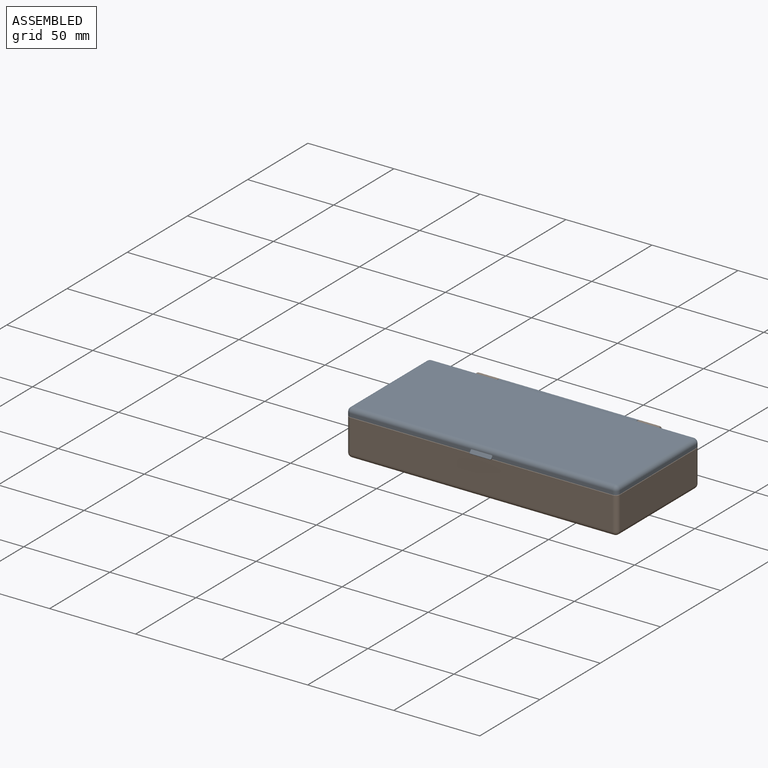
[diagram: assembled view]
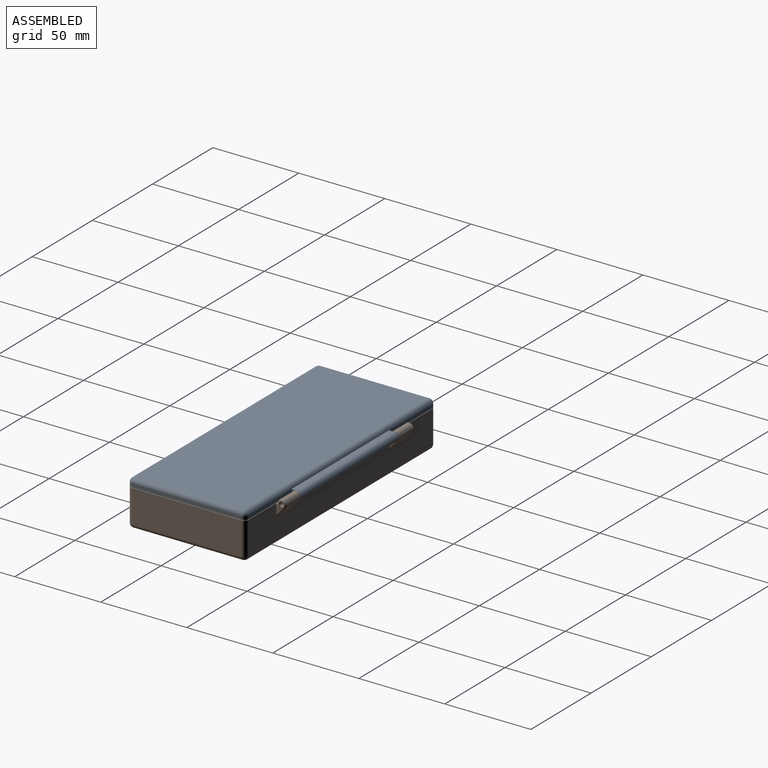
[diagram: assembled view, second angle]
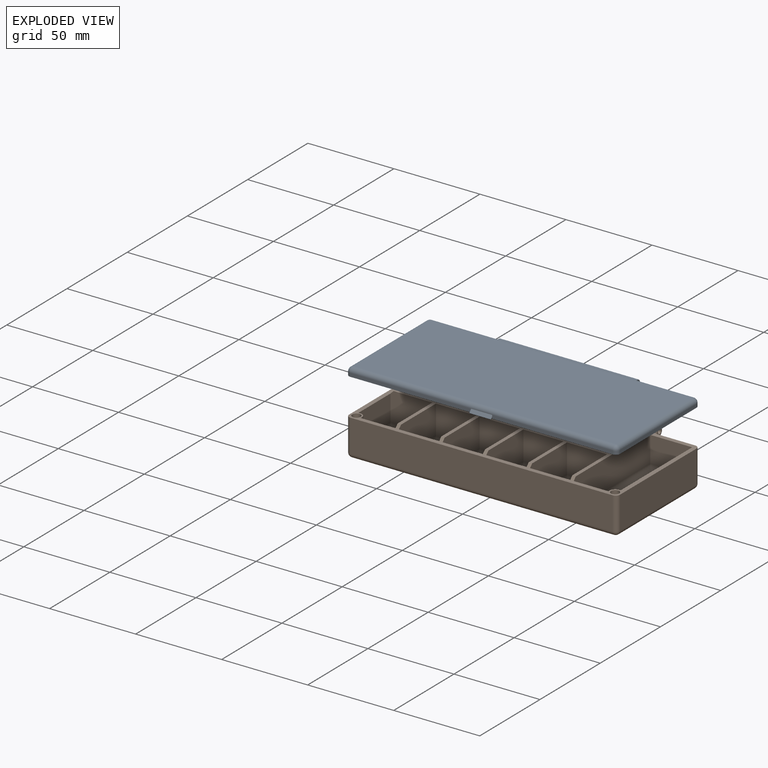
[diagram: exploded view]
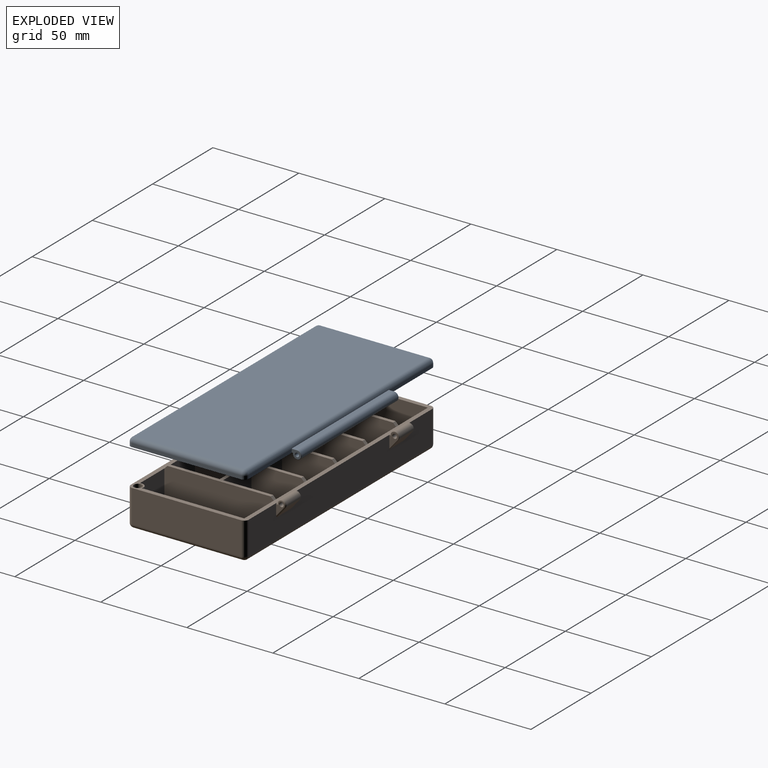
[diagram: exploded view, second angle]
ASSEMBLY  parts=2 mates=2
PART A: 65 faces, bbox 157.7x76.3x7.8 mm
  f0: plane 70.61x2.29mm, normal (0,1,0), area 142.1mm2, adj f9,f14,f15,f57,f59,f61
  f1: plane 153.62x64.72mm, normal (0,0,1), area 9898.3mm2, adj f21,f22,f23,f24,f25,f26,f49,f50
  f2: plane 36.07x2.03mm, normal (0,-1,0), area 72.8mm2, adj f3,f9,f20,f27,f36,f40
  f3: cylinder r=2.54mm len=152.4mm, axis (1,0,0), area 587.6mm2, adj f2,f5,f8,f16,f19,f30,f32,f40
  f4: plane 63.5x2.03mm, normal (-1,0,0), area 129mm2, adj f9,f15,f18,f20
  f5: plane 36.07x2.03mm, normal (0,-1,0), area 72.8mm2, adj f3,f9,f12,f28,f32,f33
  f6: plane 63.5x2.03mm, normal (1,0,0), area 129mm2, adj f9,f10,f12,f13
  f7: plane 70.61x2.29mm, normal (0,1,0), area 141.8mm2, adj f9,f10,f14,f56,f62,f64
  f8: plane 152.4x63.5mm, normal (0,0,-1), area 9677.4mm2, adj f3,f13,f14,f18
  f9: plane 157.48x69.99mm, normal (0,0,1), area 636mm2, adj f0,f2,f4,f5,f6,f7,f10,f12
  f10: cylinder r=2.54mm len=2.54mm, axis (0,0,-1), area 8.1mm2, adj f6,f7,f9,f11
  f11: sphere r=2.54mm, area 6.5mm2, adj f10,f13,f14
  f12: cylinder r=2.54mm len=2.54mm, axis (0,0,1), area 8.1mm2, adj f5,f6,f9,f16
  f13: cylinder r=2.54mm len=63.5mm, axis (0,1,0), area 253.4mm2, adj f6,f8,f11,f16
  f14: cylinder r=2.54mm len=152.4mm, axis (-1,0,0), area 608mm2, adj f0,f7,f8,f11,f17,f55
  f15: cylinder r=2.54mm len=2.54mm, axis (0,0,1), area 8.1mm2, adj f0,f4,f9,f17
  f16: sphere r=2.54mm, area 10.1mm2, adj f3,f12,f13
  f17: sphere r=2.54mm, area 13.8mm2, adj f14,f15,f18
  f18: cylinder r=2.54mm len=63.5mm, axis (0,-1,0), area 253.4mm2, adj f4,f8,f17,f19
  f19: sphere r=2.54mm, area 10.1mm2, adj f3,f18,f20
  f20: cylinder r=2.54mm len=2.54mm, axis (0,0,-1), area 8.1mm2, adj f2,f4,f9,f19
  f21: plane 58.02x1.87mm, normal (-0.98,0,0.2), area 107.8mm2, adj f1,f22,f46,f50
  f22: cone r=3.05mm half-angle=11.3deg, axis (0,0,1), area 8.3mm2, adj f1,f21,f24,f44
  f23: plane 145.47x1.87mm, normal (0,-0.98,0.2), area 270.6mm2, adj f1,f45,f49,f50
  f24: plane 148.34x1.83mm, normal (0,0.98,0.2), area 276.5mm2, adj f1,f22,f25,f43
  f25: cone r=3.05mm half-angle=11.3deg, axis (0,0,1), area 8.3mm2, adj f1,f24,f26,f41
  f26: plane 58.02x1.87mm, normal (0.98,0,0.2), area 107.8mm2, adj f1,f25,f42,f49
  f27: plane 5.33x4.57mm, normal (-1,0,0), area 13.9mm2, adj f2,f36,f38,f39,f40,f48
  f28: plane 5.33x4.57mm, normal (1,0,0), area 13.9mm2, adj f5,f32,f33,f34,f35,f47
  f29: cylinder r=2.54mm len=80.26mm, axis (1,0,0), area 963mm2, adj f30,f34,f37,f39
  f30: plane 80.26x3.03mm, normal (0,0,-1), area 243.4mm2, adj f3,f29,f32,f40
  f31: cylinder r=1.02mm len=80.26mm, axis (1,0,0), area 512.4mm2, adj f47,f48
  f32: cylinder r=0.25mm len=3.03mm, axis (0,1,0), area 1.2mm2, adj f3,f5,f28,f30,f34
  f33: cylinder r=0.25mm len=0.25mm, axis (0,-1,0), area 0.1mm2, adj f5,f9,f28,f35
  f34: torus R=2.29mm, axis (1,0,0), area 4.6mm2, adj f28,f29,f32,f35
  f35: torus R=0.51mm, axis (1,0,0), area 0.2mm2, adj f28,f33,f34,f37
  f36: cylinder r=0.25mm len=0.25mm, axis (0,1,0), area 0.1mm2, adj f2,f9,f27,f38
  f37: cylinder r=0.25mm len=80.26mm, axis (1,0,0), area 32mm2, adj f9,f29,f35,f38
  f38: torus R=0.51mm, axis (1,0,0), area 0.2mm2, adj f27,f36,f37,f39
  f39: torus R=2.29mm, axis (1,0,0), area 4.6mm2, adj f27,f29,f38,f40
  f40: cylinder r=0.25mm len=3.03mm, axis (0,-1,0), area 1.2mm2, adj f2,f3,f27,f30,f39
  f41: torus R=3.26mm, axis (0,0,1), area 1.7mm2, adj f9,f25,f42,f43
  f42: cylinder r=0.25mm len=58.2mm, axis (0,-1,0), area 20.3mm2, adj f9,f26,f41,f49
  f43: cylinder r=0.25mm len=148.34mm, axis (1,0,0), area 51.7mm2, adj f9,f24,f41,f44
  f44: torus R=3.26mm, axis (0,0,1), area 1.7mm2, adj f9,f22,f43,f46
  f45: cylinder r=0.25mm len=145.87mm, axis (1,0,0), area 50.8mm2, adj f9,f23,f49,f50
  f46: cylinder r=0.25mm len=58.2mm, axis (0,-1,0), area 20.3mm2, adj f9,f21,f44,f50
  f47: torus R=1.27mm, axis (1,0,0), area 2.8mm2, adj f28,f31
  f48: torus R=1.27mm, axis (1,0,0), area 2.8mm2, adj f27,f31
  f49: cylinder r=3.17mm len=5.42mm, axis (0,0,1), area 18.1mm2, adj f1,f9,f23,f26,f42,f45
  f50: cylinder r=3.17mm len=5.42mm, axis (0,0,1), area 18.1mm2, adj f1,f9,f21,f23,f45,f46
  f51: cylinder r=2.41mm len=4.83mm, axis (0,0,1), area 48.5mm2, adj f9,f52
  f52: plane 4.83x4.83mm, normal (0,0,1), area 18.3mm2, adj f51
  f53: cylinder r=2.41mm len=4.83mm, axis (0,0,1), area 48.5mm2, adj f9,f54
  f54: plane 4.83x4.83mm, normal (0,0,1), area 18.3mm2, adj f53
  f55: plane 11.69x1.62mm, normal (0,0.77,-0.64), area 24.6mm2, adj f14,f58,f61,f64
  f56: plane 0.73x0.61mm, normal (1,0,0), area 0.2mm2, adj f7,f62,f64
  f57: plane 0.73x0.61mm, normal (-1,0,0), area 0.2mm2, adj f0,f59,f61
  f58: cylinder r=0.25mm len=11.68mm, axis (1,0,0), area 6.7mm2, adj f9,f55,f60,f63
  f59: cylinder r=0.51mm len=1.16mm, axis (0,1,0), area 0.7mm2, adj f0,f9,f57,f60
  f60: bspline ~1.09x0.72mm, area 0.2mm2, adj f58,f59,f61
  f61: cylinder r=0.51mm len=1.94mm, axis (0,0.64,0.77), area 1.2mm2, adj f0,f55,f57,f60
  f62: cylinder r=0.51mm len=1.16mm, axis (0,-1,0), area 0.7mm2, adj f7,f9,f56,f63
  f63: bspline ~1.09x0.56mm, area 0.2mm2, adj f58,f62,f64
  f64: cylinder r=0.51mm len=1.94mm, axis (0,-0.64,-0.77), area 1.2mm2, adj f7,f55,f56,f63
PART B: 161 faces, bbox 157.5x74.4x24.3 mm
  f0: plane 157.48x69.09mm, normal (0,0,1), area 1122.9mm2, adj f1,f2,f5,f6,f7,f8,f12,f13
  f1: cylinder r=2.54mm len=11.68mm, axis (1,0,0), area 114.8mm2, adj f0,f3,f134,f141
  f2: cylinder r=2.54mm len=11.68mm, axis (1,0,0), area 114.8mm2, adj f0,f4,f128,f138
  f3: plane 11.68x5.89mm, normal (0,0.77,-0.64), area 89.9mm2, adj f1,f5,f133,f142
  f4: plane 11.68x5.89mm, normal (0,0.77,-0.64), area 89.9mm2, adj f2,f5,f129,f139
  f5: plane 152.4x19.05mm, normal (0,1,0), area 2711.3mm2, adj f0,f3,f4,f109,f110,f112,f113,f115
  f6: plane 63.5x19.05mm, normal (-1,0,0), area 1209.7mm2, adj f0,f120,f124,f126
  f7: plane 152.4x19.05mm, normal (0,-1,0), area 2903.2mm2, adj f0,f117,f123,f126
  f8: plane 63.5x19.05mm, normal (1,0,0), area 1209.7mm2, adj f0,f115,f117,f118
  f9: plane 152.4x63.5mm, normal (0,0,-1), area 9677.4mm2, adj f118,f119,f123,f124
  f10: plane 23.37x17.02mm, normal (0,-1,0), area 397.7mm2, adj f11,f53,f65,f149
  f11: plane 30.73x17.02mm, normal (-1,0,0), area 521.5mm2, adj f10,f12,f67,f149,f151
  f12: plane 23.37x15.24mm, normal (0,1,0), area 356.1mm2, adj f0,f11,f53,f68
  f13: plane 23.37x15.24mm, normal (0,-1,0), area 356.1mm2, adj f0,f14,f43,f70
  f14: plane 30.73x17.02mm, normal (-1,0,0), area 521.5mm2, adj f13,f15,f69,f149,f150
  f15: plane 23.37x17.02mm, normal (0,1,0), area 397.7mm2, adj f14,f43,f71,f149
  f16: plane 23.37x17.02mm, normal (0,-1,0), area 397.7mm2, adj f17,f44,f74,f149
  f17: plane 30.73x17.02mm, normal (-1,0,0), area 521.5mm2, adj f16,f18,f73,f149,f156
  f18: plane 23.37x15.24mm, normal (0,1,0), area 356.1mm2, adj f0,f17,f44,f75
  f19: plane 23.37x15.24mm, normal (0,-1,0), area 356.1mm2, adj f0,f20,f45,f78
  f20: plane 30.73x17.02mm, normal (-1,0,0), area 521.5mm2, adj f19,f21,f77,f149,f155
  f21: plane 23.37x17.02mm, normal (0,1,0), area 397.7mm2, adj f20,f45,f79,f149
  f22: plane 23.37x17.02mm, normal (0,-1,0), area 397.7mm2, adj f23,f46,f82,f149
  f23: plane 30.73x17.02mm, normal (-1,0,0), area 521.5mm2, adj f22,f24,f81,f149,f157
  f24: plane 23.37x15.24mm, normal (0,1,0), area 356.1mm2, adj f0,f23,f46,f83
  f25: plane 23.37x15.24mm, normal (0,-1,0), area 356.1mm2, adj f0,f26,f47,f86
  f26: plane 30.73x17.02mm, normal (-1,0,0), area 521.5mm2, adj f25,f27,f85,f149,f154
  f27: plane 23.37x17.02mm, normal (0,1,0), area 397.7mm2, adj f26,f47,f87,f149
  f28: plane 23.37x17.02mm, normal (0,-1,0), area 397.7mm2, adj f29,f48,f90,f149
  f29: plane 30.73x17.02mm, normal (-1,0,0), area 521.5mm2, adj f28,f30,f89,f149,f158
  f30: plane 23.37x15.24mm, normal (0,1,0), area 356.1mm2, adj f0,f29,f48,f91
  f31: plane 23.37x15.24mm, normal (0,-1,0), area 356.1mm2, adj f0,f32,f49,f94
  f32: plane 30.73x17.02mm, normal (-1,0,0), area 521.5mm2, adj f31,f33,f93,f149,f153
  f33: plane 23.37x17.02mm, normal (0,1,0), area 397.7mm2, adj f32,f49,f95,f149
  f34: plane 26.71x15.24mm, normal (1,0,0), area 407.1mm2, adj f0,f35,f98,f143
  f35: plane 24.38x17.02mm, normal (0,-1,0), area 413.4mm2, adj f34,f36,f97,f149,f160
  f36: plane 30.73x17.02mm, normal (-1,0,0), area 521.5mm2, adj f35,f50,f99,f149,f159
  f37: plane 24.38x15.24mm, normal (0,-1,0), area 371.6mm2, adj f0,f38,f51,f102
  f38: plane 30.73x17.02mm, normal (-1,0,0), area 521.5mm2, adj f37,f39,f101,f149,f152
  f39: plane 24.38x17.02mm, normal (0,1,0), area 413.4mm2, adj f38,f51,f103,f149,f160
  f40: plane 63.5x17.02mm, normal (1,0,0), area 1077.5mm2, adj f41,f52,f106,f149,f150,f151
  f41: plane 24.38x15.24mm, normal (0,-1,0), area 371.6mm2, adj f0,f40,f42,f105
  f42: plane 59.48x15.24mm, normal (-1,0,0), area 906.4mm2, adj f0,f41,f107,f144
  f43: plane 30.73x17.02mm, normal (1,0,0), area 521.5mm2, adj f13,f15,f72,f149,f155
  f44: plane 30.73x17.02mm, normal (1,0,0), area 521.5mm2, adj f16,f18,f76,f149,f157
  f45: plane 30.73x17.02mm, normal (1,0,0), area 521.5mm2, adj f19,f21,f80,f149,f154
  f46: plane 30.73x17.02mm, normal (1,0,0), area 521.5mm2, adj f22,f24,f84,f149,f158
  f47: plane 30.73x17.02mm, normal (1,0,0), area 521.5mm2, adj f25,f27,f88,f149,f153
  f48: plane 30.73x17.02mm, normal (1,0,0), area 521.5mm2, adj f28,f30,f92,f149,f159
  f49: plane 30.73x17.02mm, normal (1,0,0), area 521.5mm2, adj f31,f33,f96,f149,f152
  f50: plane 20.36x15.24mm, normal (0,1,0), area 310.3mm2, adj f0,f36,f100,f143
  f51: plane 30.73x15.24mm, normal (1,0,0), area 468.4mm2, adj f0,f37,f39,f104
  f52: plane 20.36x15.24mm, normal (0,1,0), area 310.3mm2, adj f0,f40,f108,f144
  f53: plane 30.73x17.02mm, normal (1,0,0), area 521.5mm2, adj f10,f12,f66,f149,f156
  f54: plane 23.11x15.75mm, normal (0,0,1), area 364mm2, adj f65,f66,f67,f68
  f55: plane 55.88x16.76mm, normal (0,0,1), area 936.8mm2, adj f105,f106,f107,f108
  f56: plane 23.11x16.76mm, normal (0,0,1), area 387.5mm2, adj f101,f102,f103,f104
  f57: plane 23.11x16.76mm, normal (0,0,1), area 387.5mm2, adj f97,f98,f99,f100
  f58: plane 23.11x15.75mm, normal (0,0,1), area 364mm2, adj f93,f94,f95,f96
  f59: plane 23.11x15.75mm, normal (0,0,1), area 364mm2, adj f89,f90,f91,f92
  f60: plane 23.11x15.75mm, normal (0,0,1), area 364mm2, adj f85,f86,f87,f88
  f61: plane 23.11x15.75mm, normal (0,0,1), area 364mm2, adj f81,f82,f83,f84
  f62: plane 23.11x15.75mm, normal (0,0,1), area 364mm2, adj f77,f78,f79,f80
  f63: plane 23.11x15.75mm, normal (0,0,1), area 364mm2, adj f73,f74,f75,f76
  f64: plane 23.11x15.75mm, normal (0,0,1), area 364mm2, adj f69,f70,f71,f72
  f65: cylinder r=3.81mm len=23.37mm, axis (1,0,0), area 123.3mm2, adj f10,f54,f66,f67
  f66: cylinder r=3.81mm len=30.73mm, axis (0,1,0), area 167.4mm2, adj f53,f54,f65,f68
  f67: cylinder r=3.81mm len=30.73mm, axis (0,-1,0), area 167.4mm2, adj f11,f54,f65,f68
  f68: cylinder r=3.81mm len=23.37mm, axis (-1,0,0), area 123.3mm2, adj f12,f54,f66,f67
  f69: cylinder r=3.81mm len=30.73mm, axis (0,-1,0), area 167.4mm2, adj f14,f64,f70,f71
  f70: cylinder r=3.81mm len=23.37mm, axis (1,0,0), area 123.3mm2, adj f13,f64,f69,f72
  f71: cylinder r=3.81mm len=23.37mm, axis (-1,0,0), area 123.3mm2, adj f15,f64,f69,f72
  f72: cylinder r=3.81mm len=30.73mm, axis (0,1,0), area 167.4mm2, adj f43,f64,f70,f71
  f73: cylinder r=3.81mm len=30.73mm, axis (0,-1,0), area 167.4mm2, adj f17,f63,f74,f75
  f74: cylinder r=3.81mm len=23.37mm, axis (1,0,0), area 123.3mm2, adj f16,f63,f73,f76
  f75: cylinder r=3.81mm len=23.37mm, axis (-1,0,0), area 123.3mm2, adj f18,f63,f73,f76
  f76: cylinder r=3.81mm len=30.73mm, axis (0,1,0), area 167.4mm2, adj f44,f63,f74,f75
  f77: cylinder r=3.81mm len=30.73mm, axis (0,-1,0), area 167.4mm2, adj f20,f62,f78,f79
  f78: cylinder r=3.81mm len=23.37mm, axis (1,0,0), area 123.3mm2, adj f19,f62,f77,f80
  f79: cylinder r=3.81mm len=23.37mm, axis (-1,0,0), area 123.3mm2, adj f21,f62,f77,f80
  f80: cylinder r=3.81mm len=30.73mm, axis (0,1,0), area 167.4mm2, adj f45,f62,f78,f79
  f81: cylinder r=3.81mm len=30.73mm, axis (0,-1,0), area 167.4mm2, adj f23,f61,f82,f83
  f82: cylinder r=3.81mm len=23.37mm, axis (1,0,0), area 123.3mm2, adj f22,f61,f81,f84
  f83: cylinder r=3.81mm len=23.37mm, axis (-1,0,0), area 123.3mm2, adj f24,f61,f81,f84
  f84: cylinder r=3.81mm len=30.73mm, axis (0,1,0), area 167.4mm2, adj f46,f61,f82,f83
  f85: cylinder r=3.81mm len=30.73mm, axis (0,-1,0), area 167.4mm2, adj f26,f60,f86,f87
  f86: cylinder r=3.81mm len=23.37mm, axis (1,0,0), area 123.3mm2, adj f25,f60,f85,f88
  f87: cylinder r=3.81mm len=23.37mm, axis (-1,0,0), area 123.3mm2, adj f27,f60,f85,f88
  f88: cylinder r=3.81mm len=30.73mm, axis (0,1,0), area 167.4mm2, adj f47,f60,f86,f87
  f89: cylinder r=3.81mm len=30.73mm, axis (0,-1,0), area 167.4mm2, adj f29,f59,f90,f91
  f90: cylinder r=3.81mm len=23.37mm, axis (1,0,0), area 123.3mm2, adj f28,f59,f89,f92
  f91: cylinder r=3.81mm len=23.37mm, axis (-1,0,0), area 123.3mm2, adj f30,f59,f89,f92
  f92: cylinder r=3.81mm len=30.73mm, axis (0,1,0), area 167.4mm2, adj f48,f59,f90,f91
  f93: cylinder r=3.81mm len=30.73mm, axis (0,-1,0), area 167.4mm2, adj f32,f58,f94,f95
  f94: cylinder r=3.81mm len=23.37mm, axis (1,0,0), area 123.3mm2, adj f31,f58,f93,f96
  f95: cylinder r=3.81mm len=23.37mm, axis (-1,0,0), area 123.3mm2, adj f33,f58,f93,f96
  f96: cylinder r=3.81mm len=30.73mm, axis (0,1,0), area 167.4mm2, adj f49,f58,f94,f95
  f97: cylinder r=3.81mm len=24.38mm, axis (1,0,0), area 129.4mm2, adj f35,f57,f98,f99
  f98: cylinder r=3.81mm len=27.47mm, axis (0,1,0), area 151.9mm2, adj f34,f57,f97,f100,f143
  f99: cylinder r=3.81mm len=30.73mm, axis (0,-1,0), area 167.4mm2, adj f36,f57,f97,f100
  f100: cylinder r=3.81mm len=21.12mm, axis (-1,0,0), area 113.9mm2, adj f50,f57,f98,f99,f143
  f101: cylinder r=3.81mm len=30.73mm, axis (0,-1,0), area 167.4mm2, adj f38,f56,f102,f103
  f102: cylinder r=3.81mm len=24.38mm, axis (1,0,0), area 129.4mm2, adj f37,f56,f101,f104
  f103: cylinder r=3.81mm len=24.38mm, axis (-1,0,0), area 129.4mm2, adj f39,f56,f101,f104
  f104: cylinder r=3.81mm len=30.73mm, axis (0,1,0), area 167.4mm2, adj f51,f56,f102,f103
  f105: cylinder r=3.81mm len=24.38mm, axis (1,0,0), area 129.4mm2, adj f41,f55,f106,f107
  f106: cylinder r=3.81mm len=63.5mm, axis (0,1,0), area 363.5mm2, adj f40,f55,f105,f108
  f107: cylinder r=3.81mm len=60.24mm, axis (0,-1,0), area 348mm2, adj f42,f55,f105,f108,f144
  f108: cylinder r=3.81mm len=21.12mm, axis (-1,0,0), area 113.9mm2, adj f52,f55,f106,f107,f144
  f109: plane 9.47x5.33mm, normal (-1,0,0), area 23.2mm2, adj f5,f127,f128,f129,f132
  f110: plane 9.47x5.33mm, normal (1,0,0), area 23.2mm2, adj f5,f133,f134,f135,f136
  f111: cylinder r=1.14mm len=12.19mm, axis (1,0,0), area 87.6mm2, adj f131,f132
  f112: plane 8.18x4.83mm, normal (1,0,0), area 14.8mm2, adj f5,f131,f137,f138,f139
  f113: plane 8.18x4.83mm, normal (-1,0,0), area 14.8mm2, adj f5,f130,f140,f141,f142
  f114: cylinder r=1.14mm len=12.19mm, axis (1,0,0), area 87.6mm2, adj f130,f136
  f115: cylinder r=2.54mm len=19.05mm, axis (0,0,-1), area 76mm2, adj f0,f5,f8,f116
  f116: sphere r=2.54mm, area 10.1mm2, adj f115,f118,f119
  f117: cylinder r=2.54mm len=19.05mm, axis (0,0,1), area 76mm2, adj f0,f7,f8,f121
  f118: cylinder r=2.54mm len=63.5mm, axis (0,1,0), area 253.4mm2, adj f8,f9,f116,f121
  f119: cylinder r=2.54mm len=152.4mm, axis (-1,0,0), area 608mm2, adj f5,f9,f116,f122
  f120: cylinder r=2.54mm len=19.05mm, axis (0,0,1), area 76mm2, adj f0,f5,f6,f122
  f121: sphere r=2.54mm, area 10.1mm2, adj f117,f118,f123
  f122: sphere r=2.54mm, area 10.1mm2, adj f119,f120,f124
  f123: cylinder r=2.54mm len=152.4mm, axis (1,0,0), area 608mm2, adj f7,f9,f121,f125
  f124: cylinder r=2.54mm len=63.5mm, axis (0,-1,0), area 253.4mm2, adj f6,f9,f122,f125
  f125: sphere r=2.54mm, area 10.1mm2, adj f123,f124,f126
  f126: cylinder r=2.54mm len=19.05mm, axis (0,0,-1), area 76mm2, adj f0,f6,f7,f125
  f127: cylinder r=0.25mm len=0.78mm, axis (0,-1,0), area 0.2mm2, adj f0,f5,f109,f128
  f128: torus R=2.29mm, axis (-1,0,0), area 3.8mm2, adj f2,f109,f127,f129
  f129: cylinder r=0.25mm len=6.06mm, axis (0,0.64,0.77), area 3mm2, adj f4,f5,f109,f128
  f130: torus R=1.4mm, axis (-1,0,0), area 3.1mm2, adj f113,f114
  f131: torus R=1.4mm, axis (-1,0,0), area 3.1mm2, adj f111,f112
  f132: torus R=1.4mm, axis (-1,0,0), area 3.1mm2, adj f109,f111
  f133: cylinder r=0.25mm len=6.06mm, axis (0,-0.64,-0.77), area 3mm2, adj f3,f5,f110,f134
  f134: torus R=2.29mm, axis (-1,0,0), area 3.8mm2, adj f1,f110,f133,f135
  f135: cylinder r=0.25mm len=0.78mm, axis (0,1,0), area 0.2mm2, adj f0,f5,f110,f134
  f136: torus R=1.4mm, axis (-1,0,0), area 3.1mm2, adj f110,f114
  f137: cylinder r=0.76mm len=1.44mm, axis (0,1,0), area 1mm2, adj f0,f5,f112,f138
  f138: torus R=1.78mm, axis (-1,0,0), area 10.8mm2, adj f2,f112,f137,f139
  f139: cylinder r=0.76mm len=6.39mm, axis (0,-0.64,-0.77), area 8.8mm2, adj f4,f5,f112,f138
  f140: cylinder r=0.76mm len=1.44mm, axis (0,-1,0), area 1mm2, adj f0,f5,f113,f141
  f141: torus R=1.78mm, axis (-1,0,0), area 10.8mm2, adj f1,f113,f140,f142
  f142: cylinder r=0.76mm len=6.39mm, axis (0,0.64,0.77), area 8.8mm2, adj f3,f5,f113,f141
  f143: cylinder r=3.17mm len=19.01mm, axis (0,0,1), area 128mm2, adj f0,f34,f50,f98,f100
  f144: cylinder r=3.17mm len=19.01mm, axis (0,0,1), area 128mm2, adj f0,f42,f52,f107,f108
  f145: cylinder r=2.41mm len=4.83mm, axis (0,0,1), area 48.9mm2, adj f0,f146
  f146: plane 4.83x4.83mm, normal (0,0,1), area 18.3mm2, adj f145
  f147: cylinder r=2.41mm len=4.83mm, axis (0,0,1), area 48.9mm2, adj f0,f148
  f148: plane 4.83x4.83mm, normal (0,0,1), area 18.3mm2, adj f147
  f149: plane 126.24x59.94mm, normal (0,0,1), area 844.9mm2, adj f10,f11,f14,f15,f16,f17,f20,f21
  f150: plane 2.03x1.78mm, normal (0,0.71,0.71), area 5.1mm2, adj f0,f14,f40,f149
  f151: plane 2.03x1.78mm, normal (0,-0.71,0.71), area 5.1mm2, adj f0,f11,f40,f149
  f152: plane 2.03x1.78mm, normal (0,0.71,0.71), area 5.1mm2, adj f0,f38,f49,f149
  f153: plane 2.03x1.78mm, normal (0,0.71,0.71), area 5.1mm2, adj f0,f32,f47,f149
  f154: plane 2.03x1.78mm, normal (0,0.71,0.71), area 5.1mm2, adj f0,f26,f45,f149
  f155: plane 2.03x1.78mm, normal (0,0.71,0.71), area 5.1mm2, adj f0,f20,f43,f149
  f156: plane 2.03x1.78mm, normal (0,-0.71,0.71), area 5.1mm2, adj f0,f17,f53,f149
  f157: plane 2.03x1.78mm, normal (0,-0.71,0.71), area 5.1mm2, adj f0,f23,f44,f149
  f158: plane 2.03x1.78mm, normal (0,-0.71,0.71), area 5.1mm2, adj f0,f29,f46,f149
  f159: plane 2.03x1.78mm, normal (0,-0.71,0.71), area 5.1mm2, adj f0,f36,f48,f149
  f160: plane 2.03x1.78mm, normal (-0.71,0,0.71), area 5.1mm2, adj f0,f35,f39,f149
PLACE A rot(axis=(1,0,0),180deg) t=(0,0,26.42)mm
PLACE B at identity fixed
MATE planar A.f6 <-> B.f8  axis (1,0,0) through (78.74,0,22.86)mm
MATE cylindrical B.f131 <-> A.f29  axis (1,0,0) through (46.99,37.34,21.59)mm
